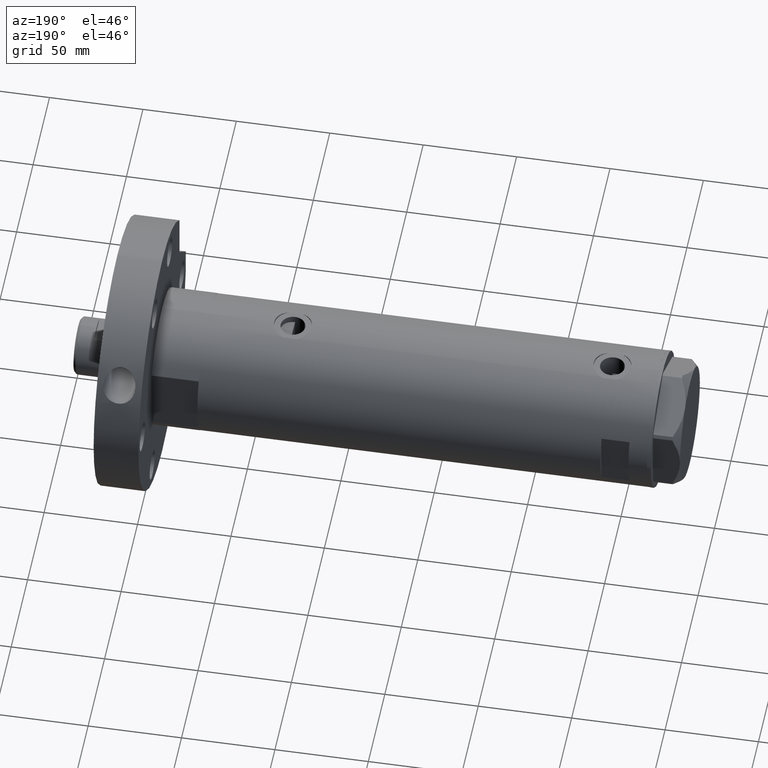
[diagram: clean part render]
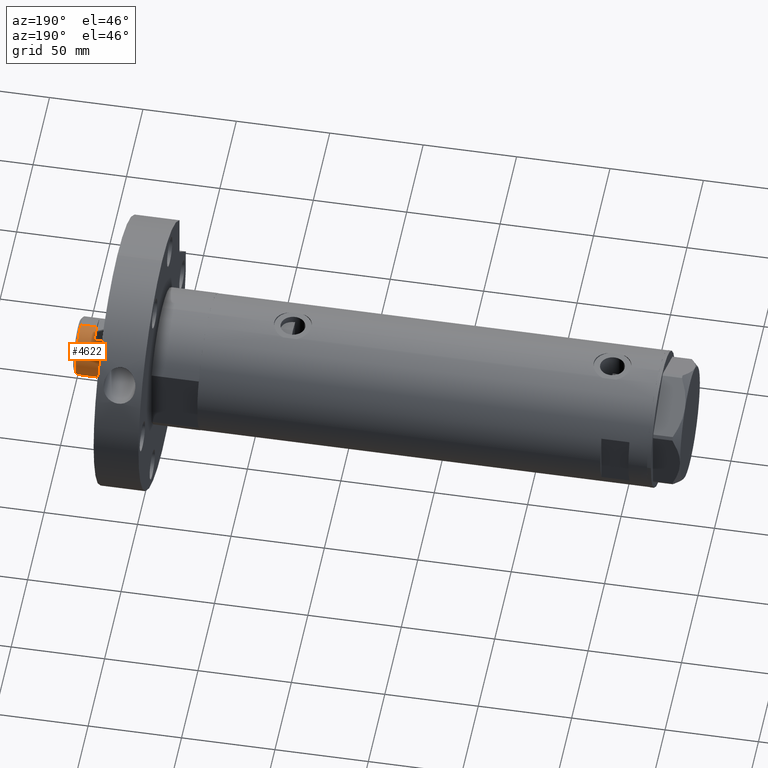
[diagram: same view with one face highlighted and labeled with its STEP entity id]
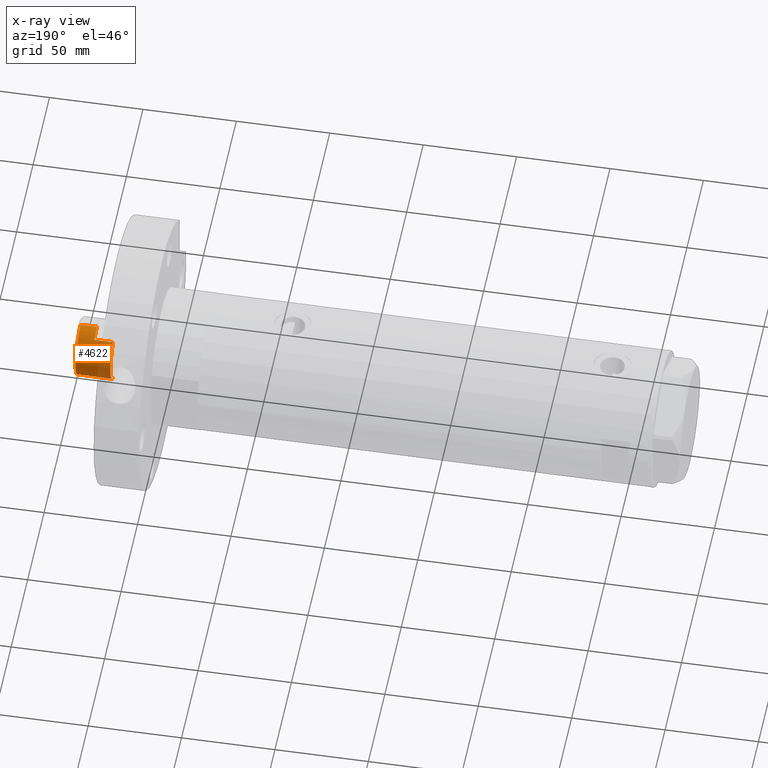
[diagram: x-ray of the same camera — body ghosted, the highlighted face saturated]
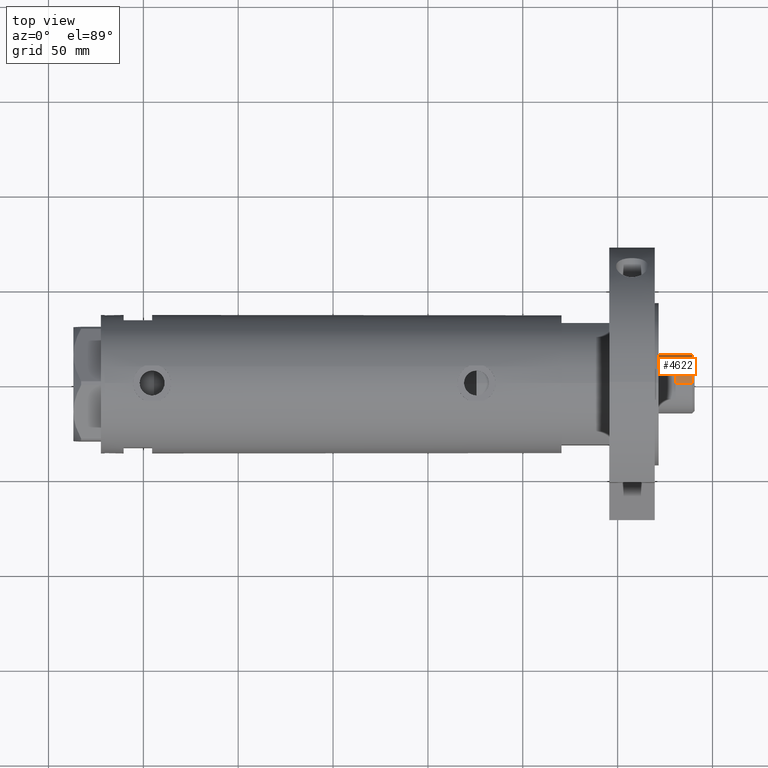
[diagram: same view with one face highlighted and labeled with its STEP entity id]
A machine part, auxiliary view. The second image highlights one B-rep face of the part: STEP entity #4622.
The next image is the same camera in x-ray: the body ghosted, the highlighted face saturated — about 28% of this face is hidden behind the body in this view.
A second angle (top view) of the same face is appended — the face is thin or edge-on in the first view.
In plain terms, the highlighted cylindrical surface (edge-blend (fillet) strip) has radius 15.5 mm, axis along (-1, -0, 0).
Its self-contained STEP definition (entity closure, byte-faithful):
#80 = CARTESIAN_POINT ( 'NONE',  ( 15.50000000000000178, 1.898202538678397557E-15, 275.0000000000000000 ) ) ;
#95 = DIRECTION ( 'NONE',  ( 1.000000000000000000, 0.000000000000000000, 0.000000000000000000 ) ) ;
#98 = VERTEX_POINT ( 'NONE', #2172 ) ;
#145 = LINE ( 'NONE', #5270, #6046 ) ;
#321 = CARTESIAN_POINT ( 'NONE',  ( 0.000000000000000000, 0.000000000000000000, 275.0000000000000000 ) ) ;
#349 = CYLINDRICAL_SURFACE ( 'NONE', #5757, 15.49999999999999822 ) ;
#396 = CIRCLE ( 'NONE', #2084, 15.49999999999999822 ) ;
#473 = DIRECTION ( 'NONE',  ( 1.000000000000000000, 0.000000000000000000, 0.000000000000000000 ) ) ;
#581 = VERTEX_POINT ( 'NONE', #80 ) ;
#622 = CARTESIAN_POINT ( 'NONE',  ( 13.48630416385452868, 7.639999999999997904, 275.0000000000000000 ) ) ;
#629 = DIRECTION ( 'NONE',  ( 1.000000000000000000, 0.000000000000000000, 0.000000000000000000 ) ) ;
#655 = DIRECTION ( 'NONE',  ( -0.000000000000000000, -0.000000000000000000, -1.000000000000000000 ) ) ;
#661 = ORIENTED_EDGE ( 'NONE', *, *, #2737, .T. ) ;
#835 = ORIENTED_EDGE ( 'NONE', *, *, #5573, .T. ) ;
#983 = ORIENTED_EDGE ( 'NONE', *, *, #2318, .T. ) ;
#1307 = FACE_OUTER_BOUND ( 'NONE', #1999, .T. ) ;
#1369 = VECTOR ( 'NONE', #3635, 1000.000000000000000 ) ;
#1477 = DIRECTION ( 'NONE',  ( -0.000000000000000000, -0.000000000000000000, -1.000000000000000000 ) ) ;
#1765 = CARTESIAN_POINT ( 'NONE',  ( 0.000000000000000000, 0.000000000000000000, 275.0000000000000000 ) ) ;
#1827 = EDGE_CURVE ( 'NONE', #98, #2820, #5446, .T. ) ;
#1936 = ORIENTED_EDGE ( 'NONE', *, *, #1827, .T. ) ;
#1999 = EDGE_LOOP ( 'NONE', ( #2785, #2670, #983, #835, #1936, #4618, #661, #2526 ) ) ;
#2084 = AXIS2_PLACEMENT_3D ( 'NONE', #2475, #3856, #95 ) ;
#2172 = CARTESIAN_POINT ( 'NONE',  ( 13.48630416385452868, 7.639999999999997904, 265.0000000000000000 ) ) ;
#2212 = VERTEX_POINT ( 'NONE', #2805 ) ;
#2253 = VECTOR ( 'NONE', #655, 1000.000000000000000 ) ;
#2307 = DIRECTION ( 'NONE',  ( 0.000000000000000000, 0.000000000000000000, 1.000000000000000000 ) ) ;
#2318 = EDGE_CURVE ( 'NONE', #581, #2212, #4252, .T. ) ;
#2437 = EDGE_CURVE ( 'NONE', #4629, #581, #2834, .T. ) ;
#2475 = CARTESIAN_POINT ( 'NONE',  ( 0.000000000000000000, 0.000000000000000000, 283.5999999999999659 ) ) ;
#2525 = EDGE_CURVE ( 'NONE', #5227, #4114, #2663, .T. ) ;
#2526 = ORIENTED_EDGE ( 'NONE', *, *, #2525, .F. ) ;
#2615 = CARTESIAN_POINT ( 'NONE',  ( -15.49999999999999822, 0.000000000000000000, 283.5999999999999659 ) ) ;
#2663 = LINE ( 'NONE', #2719, #1369 ) ;
#2670 = ORIENTED_EDGE ( 'NONE', *, *, #2437, .T. ) ;
#2719 = CARTESIAN_POINT ( 'NONE',  ( -15.49999999999999822, 0.000000000000000000, 275.0000000000000000 ) ) ;
#2737 = EDGE_CURVE ( 'NONE', #3361, #4114, #3767, .T. ) ;
#2785 = ORIENTED_EDGE ( 'NONE', *, *, #3857, .T. ) ;
#2805 = CARTESIAN_POINT ( 'NONE',  ( 13.48630416385452868, 7.639999999999997904, 275.0000000000000000 ) ) ;
#2820 = VERTEX_POINT ( 'NONE', #5002 ) ;
#2834 = LINE ( 'NONE', #4923, #2253 ) ;
#3224 = CARTESIAN_POINT ( 'NONE',  ( 15.49999999999999822, 1.898202538678397163E-15, 283.5999999999999659 ) ) ;
#3254 = DIRECTION ( 'NONE',  ( -0.000000000000000000, -0.000000000000000000, -1.000000000000000000 ) ) ;
#3319 = CARTESIAN_POINT ( 'NONE',  ( 0.000000000000000000, 0.000000000000000000, 265.0000000000000000 ) ) ;
#3361 = VERTEX_POINT ( 'NONE', #3372 ) ;
#3372 = CARTESIAN_POINT ( 'NONE',  ( -13.48630416385452868, 7.639999999999998792, 275.0000000000000000 ) ) ;
#3433 = DIRECTION ( 'NONE',  ( 0.000000000000000000, 0.000000000000000000, 1.000000000000000000 ) ) ;
#3635 = DIRECTION ( 'NONE',  ( -0.000000000000000000, -0.000000000000000000, -1.000000000000000000 ) ) ;
#3686 = DIRECTION ( 'NONE',  ( -1.000000000000000000, 0.000000000000000000, 0.000000000000000000 ) ) ;
#3763 = AXIS2_PLACEMENT_3D ( 'NONE', #5610, #2307, #4215 ) ;
#3767 = CIRCLE ( 'NONE', #3763, 15.50000000000000000 ) ;
#3856 = DIRECTION ( 'NONE',  ( 0.000000000000000000, 0.000000000000000000, -1.000000000000000000 ) ) ;
#3857 = EDGE_CURVE ( 'NONE', #5227, #4629, #396, .T. ) ;
#3872 = DIRECTION ( 'NONE',  ( -0.000000000000000000, -0.000000000000000000, -1.000000000000000000 ) ) ;
#4114 = VERTEX_POINT ( 'NONE', #5211 ) ;
#4215 = DIRECTION ( 'NONE',  ( 1.000000000000000000, 0.000000000000000000, 0.000000000000000000 ) ) ;
#4239 = EDGE_CURVE ( 'NONE', #3361, #2820, #145, .T. ) ;
#4252 = CIRCLE ( 'NONE', #5152, 15.50000000000000000 ) ;
#4618 = ORIENTED_EDGE ( 'NONE', *, *, #4239, .F. ) ;
#4622 = ADVANCED_FACE ( 'NONE', ( #1307 ), #349, .T. ) ;
#4629 = VERTEX_POINT ( 'NONE', #3224 ) ;
#4815 = LINE ( 'NONE', #622, #5658 ) ;
#4923 = CARTESIAN_POINT ( 'NONE',  ( 15.49999999999999822, 1.898202538678397163E-15, 275.0000000000000000 ) ) ;
#5002 = CARTESIAN_POINT ( 'NONE',  ( -13.48630416385452513, 7.639999999999917968, 265.0000000000000000 ) ) ;
#5145 = AXIS2_PLACEMENT_3D ( 'NONE', #3319, #5207, #473 ) ;
#5152 = AXIS2_PLACEMENT_3D ( 'NONE', #321, #3433, #629 ) ;
#5207 = DIRECTION ( 'NONE',  ( 0.000000000000000000, 0.000000000000000000, 1.000000000000000000 ) ) ;
#5211 = CARTESIAN_POINT ( 'NONE',  ( -15.50000000000000178, 0.000000000000000000, 275.0000000000000000 ) ) ;
#5227 = VERTEX_POINT ( 'NONE', #2615 ) ;
#5270 = CARTESIAN_POINT ( 'NONE',  ( -13.48630416385452868, 7.639999999999998792, 275.0000000000000000 ) ) ;
#5446 = CIRCLE ( 'NONE', #5145, 15.49999999999995737 ) ;
#5573 = EDGE_CURVE ( 'NONE', #2212, #98, #4815, .T. ) ;
#5610 = CARTESIAN_POINT ( 'NONE',  ( 0.000000000000000000, 0.000000000000000000, 275.0000000000000000 ) ) ;
#5658 = VECTOR ( 'NONE', #1477, 1000.000000000000000 ) ;
#5757 = AXIS2_PLACEMENT_3D ( 'NONE', #1765, #3254, #3686 ) ;
#6046 = VECTOR ( 'NONE', #3872, 1000.000000000000000 ) ;